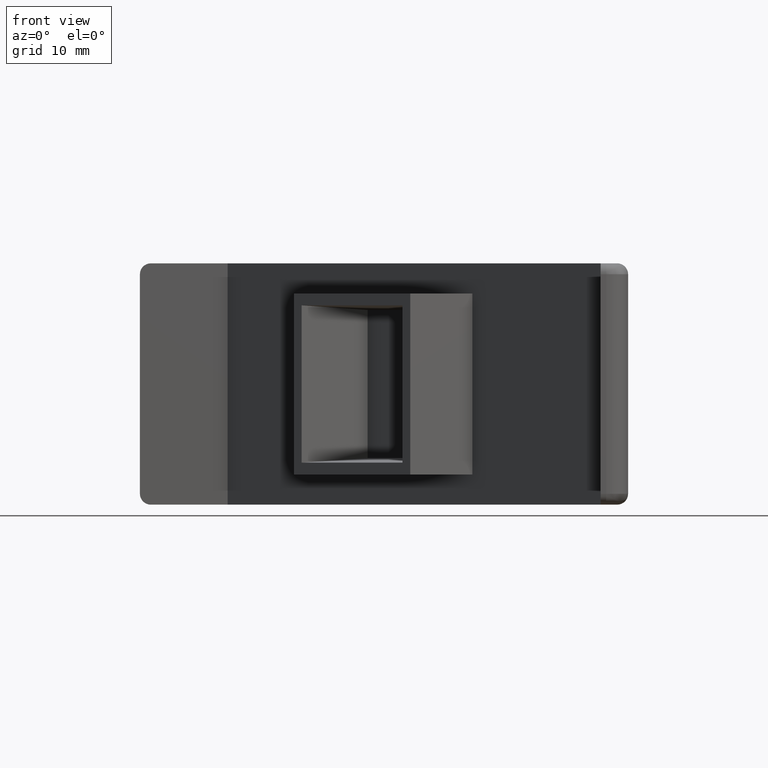
[diagram: clean part render]
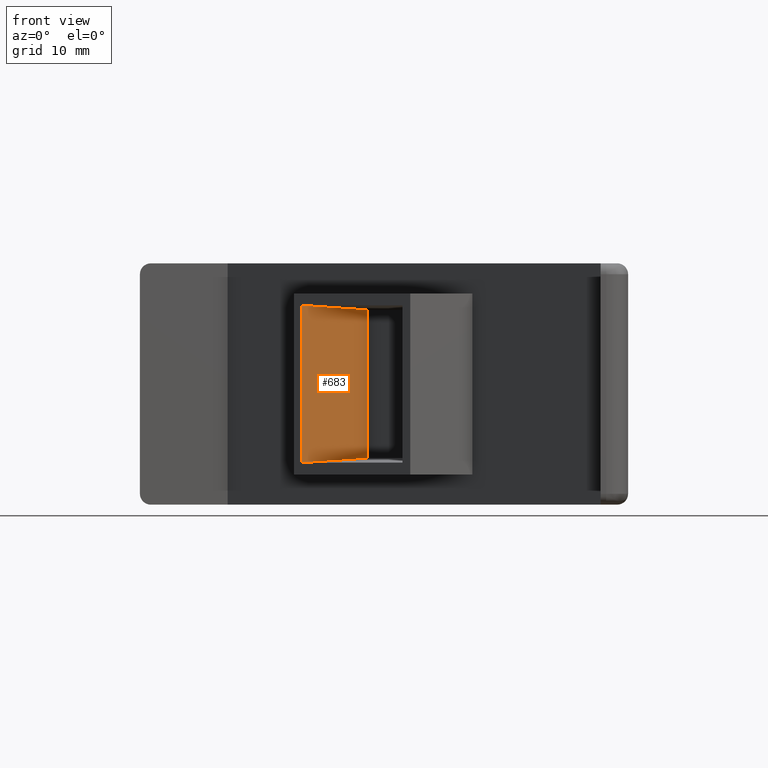
[diagram: same view with one face highlighted and labeled with its STEP entity id]
A machine part, front view. The second image highlights one B-rep face of the part: STEP entity #683.
In plain terms, the highlighted planar face has unit normal (-0.6616, 0.7498, 0).
Its self-contained STEP definition (entity closure, byte-faithful):
#63=FACE_OUTER_BOUND('',#107,.T.);
#107=EDGE_LOOP('',(#558,#559,#560,#561));
#153=LINE('',#1062,#215);
#155=LINE('',#1067,#217);
#157=LINE('',#1071,#219);
#188=LINE('',#1148,#250);
#215=VECTOR('',#831,13.5);
#217=VECTOR('',#835,8.02656718785063);
#219=VECTOR('',#839,8.02656718785063);
#250=VECTOR('',#912,14.3385244685287);
#317=VERTEX_POINT('',#1056);
#319=VERTEX_POINT('',#1060);
#321=VERTEX_POINT('',#1066);
#322=VERTEX_POINT('',#1070);
#381=EDGE_CURVE('',#319,#317,#153,.T.);
#383=EDGE_CURVE('',#321,#317,#155,.T.);
#385=EDGE_CURVE('',#322,#319,#157,.T.);
#424=EDGE_CURVE('',#322,#321,#188,.T.);
#558=ORIENTED_EDGE('',*,*,#385,.F.);
#559=ORIENTED_EDGE('',*,*,#424,.T.);
#560=ORIENTED_EDGE('',*,*,#383,.T.);
#561=ORIENTED_EDGE('',*,*,#381,.F.);
#661=PLANE('',#743);
#683=ADVANCED_FACE('',(#63),#661,.F.);
#743=AXIS2_PLACEMENT_3D('',#1152,#918,#919);
#831=DIRECTION('',(0.,0.,-1.));
#835=DIRECTION('',(0.748814219008006,0.660718428536476,0.0522343144275855));
#839=DIRECTION('',(0.748814219008006,0.660718428536476,-0.0522343144275855));
#912=DIRECTION('',(0.,0.,-1.));
#918=DIRECTION('center_axis',(-0.661621637086846,0.749837855365093,0.));
#919=DIRECTION('ref_axis',(-0.749837855365093,-0.661621637086846,0.));
#1056=CARTESIAN_POINT('',(20.7573593128807,29.2426406871193,-6.75));
#1060=CARTESIAN_POINT('',(20.7573593128807,29.2426406871193,6.75));
#1062=CARTESIAN_POINT('',(20.7573593128807,29.2426406871193,16.2128073243519));
#1066=CARTESIAN_POINT('',(14.7469516727951,23.9393398282202,-7.16926223426433));
#1067=CARTESIAN_POINT('',(14.3932242826936,23.6272274251895,-7.19393685614943));
#1070=CARTESIAN_POINT('',(14.7469516727951,23.9393398282202,7.16926223426433));
#1071=CARTESIAN_POINT('',(14.3932242826936,23.6272274251895,7.19393685614943));
#1148=CARTESIAN_POINT('',(14.7469516727951,23.9393398282202,16.2128073243519));
#1152=CARTESIAN_POINT('Origin',(14.7469516727951,23.9393398282202,16.2128073243519));